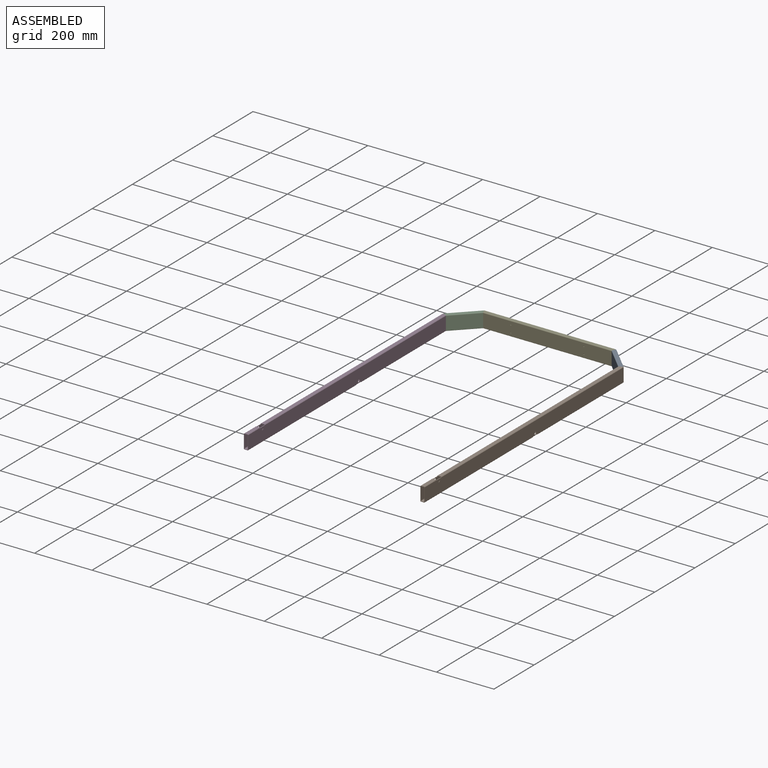
[diagram: assembled view]
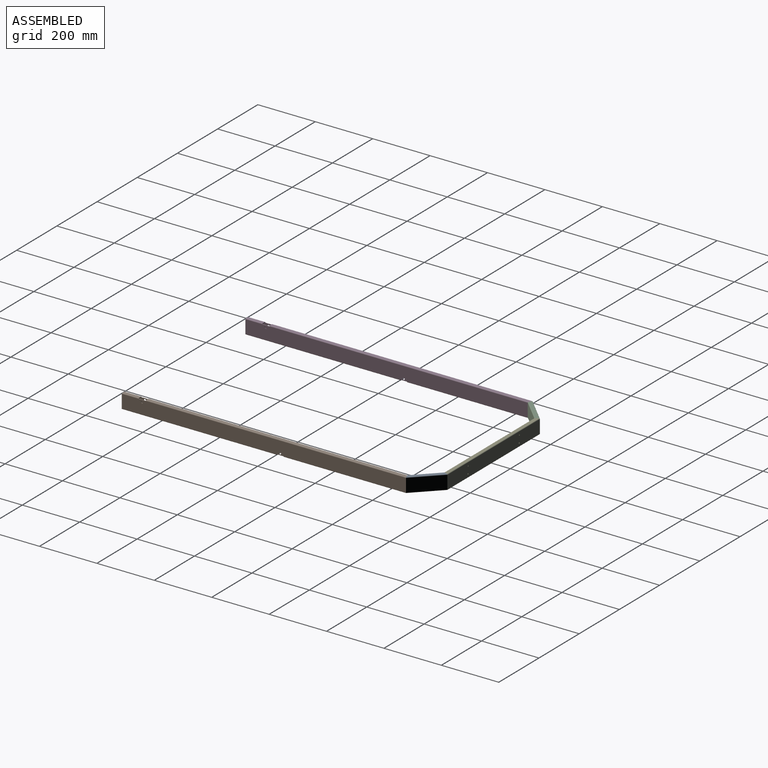
[diagram: assembled view, second angle]
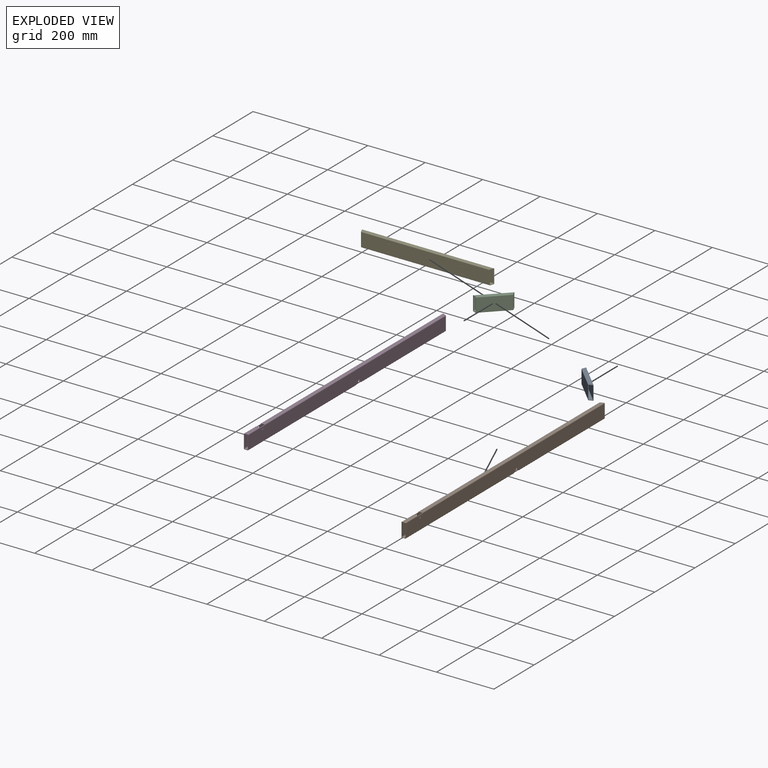
[diagram: exploded view]
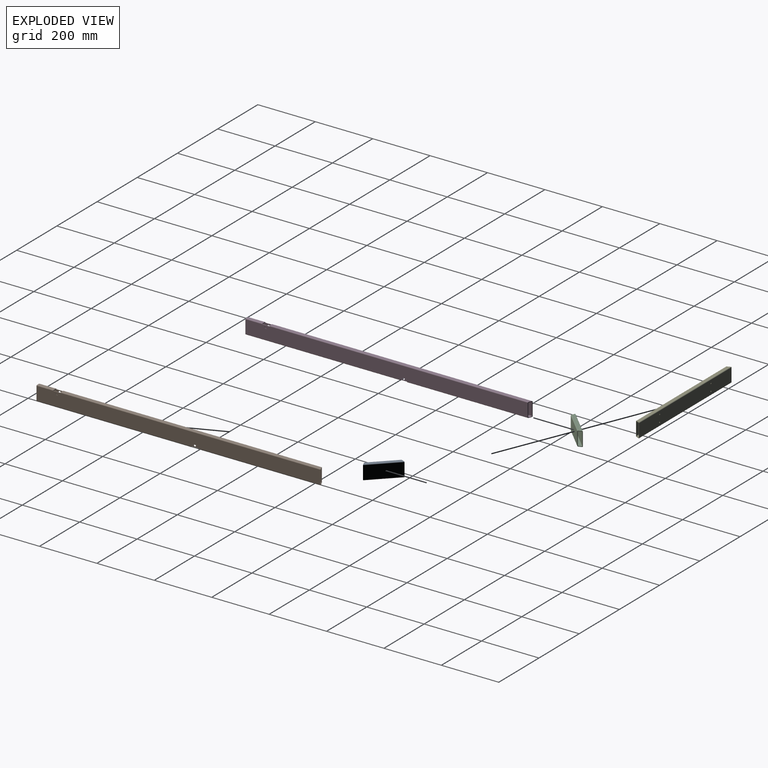
[diagram: exploded view, second angle]
ASSEMBLY  parts=5 mates=4
PART A: 18 faces, bbox 120.1x15x50 mm
  f0: cylinder r=2mm len=109.33mm, axis (1,0,0), area 340.2mm2, adj f2,f4,f8,f9
  f1: cylinder r=2mm len=109.33mm, axis (-1,0,0), area 340.2mm2, adj f2,f6,f8,f9
  f2: plane 107.67x46mm, normal (0,-1,0), area 4953mm2, adj f0,f1,f8,f9
  f3: cylinder r=2mm len=120.1mm, axis (-1,0,0), area 375.4mm2, adj f4,f7,f8,f9
  f4: plane 118.44x11mm, normal (0,0,1), area 1252.8mm2, adj f0,f3,f8,f9
  f5: cylinder r=2mm len=120.1mm, axis (1,0,0), area 375.4mm2, adj f6,f7,f8,f9
  f6: plane 118.44x11mm, normal (0,0,-1), area 1252.8mm2, adj f1,f5,f8,f9
  f7: plane 120.1x46mm, normal (0,1,0), area 5524.6mm2, adj f3,f5,f8,f9
  f8: plane 50x15mm, normal (0.92,-0.38,0), area 201.3mm2, adj f0,f1,f2,f3,f4,f5,f6,f7
  f9: plane 50x15mm, normal (-0.92,-0.38,0), area 201.3mm2, adj f0,f1,f2,f3,f4,f5,f6,f7
  f10: plane 118.86x43mm, normal (0,-1,0), area 5110.9mm2, adj f8,f9,f14,f17
  f11: plane 117.2x8mm, normal (0,0,1), area 911.1mm2, adj f8,f9,f14,f15
  f12: plane 108.92x43mm, normal (0,1,0), area 4683.4mm2, adj f8,f9,f15,f16
  f13: plane 117.2x8mm, normal (0,0,-1), area 911.1mm2, adj f8,f9,f16,f17
  f14: cylinder r=2mm len=118.86mm, axis (-1,0,0), area 371.5mm2, adj f8,f9,f10,f11
  f15: cylinder r=2mm len=110.57mm, axis (1,0,0), area 344.1mm2, adj f8,f9,f11,f12
  f16: cylinder r=2mm len=110.57mm, axis (-1,0,0), area 344.1mm2, adj f8,f9,f12,f13
  f17: cylinder r=2mm len=118.86mm, axis (1,0,0), area 371.5mm2, adj f8,f9,f10,f13
PART B: 38 faces, bbox 990x15x50 mm
  f0: plane 983.79x46mm, normal (0,1,0), area 45138.6mm2, adj f9,f10,f20,f23,f24,f25,f28,f29
  f1: plane 984.41x43mm, normal (0,-1,0), area 42223.9mm2, adj f6,f7,f20,f31,f32,f37
  f2: plane 989.38x43mm, normal (0,1,0), area 42437.7mm2, adj f5,f8,f20,f21,f26,f37
  f3: plane 904.97x8mm, normal (0,0,-1), area 7226.5mm2, adj f5,f6,f28,f37
  f4: plane 424.97x8mm, normal (0,0,1), area 3386.5mm2, adj f7,f8,f24,f37
  f5: cylinder r=2mm len=989.38mm, axis (-1,0,0), area 3064.1mm2, adj f2,f3,f19,f20,f27,f28,f29,f37
  f6: cylinder r=2mm len=985.24mm, axis (1,0,0), area 3050.4mm2, adj f1,f3,f19,f20,f28,f29,f30,f37
  f7: cylinder r=2mm len=985.24mm, axis (-1,0,0), area 3050.4mm2, adj f1,f4,f15,f20,f23,f24,f25,f37
  f8: cylinder r=2mm len=989.38mm, axis (1,0,0), area 3064.1mm2, adj f2,f4,f15,f20,f22,f23,f24,f37
  f9: cylinder r=2mm len=421.04mm, axis (1,0,0), area 1321.1mm2, adj f0,f17,f24,f37
  f10: cylinder r=2mm len=901.04mm, axis (-1,0,0), area 2829mm2, adj f0,f18,f28,f37
  f11: cylinder r=2mm len=906.42mm, axis (1,0,0), area 2846.7mm2, adj f16,f18,f28,f37
  f12: cylinder r=2mm len=426.42mm, axis (-1,0,0), area 1338.7mm2, adj f16,f17,f24,f37
  f13: plane 538.58x11mm, normal (0,0,-1), area 5924.4mm2, adj f20,f23,f33,f36
  f14: plane 58.58x11mm, normal (0,0,1), area 644.4mm2, adj f20,f29,f34,f35
  f15: plane 538.58x8mm, normal (0,0,1), area 4308.6mm2, adj f7,f8,f20,f23
  f16: plane 990x46mm, normal (0,-1,0), area 45424.4mm2, adj f11,f12,f20,f21,f22,f23,f24,f26
  f17: plane 425.59x11mm, normal (0,0,-1), area 4656.5mm2, adj f9,f12,f24,f37
  f18: plane 905.59x11mm, normal (0,0,1), area 9936.5mm2, adj f10,f11,f28,f37
  f19: plane 58.58x8mm, normal (0,0,-1), area 468.6mm2, adj f5,f6,f20,f29
  f20: plane 50x15mm, normal (-1,0,0), area 186mm2, adj f0,f1,f2,f5,f6,f7,f8,f13
  f21: cylinder r=4.1mm len=8.2mm, axis (0,-1,0), area 38.6mm2, adj f2,f16
  f22: plane 25x1.98mm, normal (0,0,-1), area 49.5mm2, adj f8,f16,f23,f24
  f23: plane 15x2.2mm, normal (1,0,0), area 24.2mm2, adj f0,f7,f8,f13,f15,f16,f22,f25
  f24: plane 15x2.2mm, normal (-1,0,0), area 24.2mm2, adj f0,f4,f7,f8,f9,f12,f16,f17
  f25: plane 25x1.98mm, normal (0,0,-1), area 49.5mm2, adj f0,f7,f23,f24
  f26: cylinder r=4.1mm len=8.2mm, axis (0,-1,0), area 38.6mm2, adj f2,f16
  f27: plane 25x1.98mm, normal (0,0,1), area 49.5mm2, adj f5,f16,f28,f29
  f28: plane 15x2.2mm, normal (-1,0,0), area 24.2mm2, adj f0,f3,f5,f6,f10,f11,f16,f18
  f29: plane 15x2.2mm, normal (1,0,0), area 24.2mm2, adj f0,f5,f6,f14,f16,f19,f27,f30
  f30: plane 25x1.98mm, normal (0,0,1), area 49.5mm2, adj f0,f6,f28,f29
  f31: cylinder r=4.1mm len=8.2mm, axis (0,-1,0), area 38.6mm2, adj f0,f1
  f32: cylinder r=4.1mm len=8.2mm, axis (0,-1,0), area 38.6mm2, adj f0,f1
  f33: cylinder r=2mm len=538.58mm, axis (1,0,0), area 1692mm2, adj f0,f13,f20,f23
  f34: cylinder r=2mm len=58.58mm, axis (-1,0,0), area 184mm2, adj f0,f14,f20,f29
  f35: cylinder r=2mm len=58.58mm, axis (1,0,0), area 184mm2, adj f14,f16,f20,f29
  f36: cylinder r=2mm len=538.58mm, axis (-1,0,0), area 1692mm2, adj f13,f16,f20,f23
  f37: plane 50x15mm, normal (0.92,0.38,0), area 201.3mm2, adj f0,f1,f2,f3,f4,f5,f6,f7
PART C: same geometry as A
PART D: 38 faces, bbox 990x15x50 mm
  f0: plane 983.79x46mm, normal (0,-1,0), area 45138.6mm2, adj f12,f13,f14,f15,f16,f18,f19,f20
  f1: plane 425.59x11mm, normal (0,0,-1), area 4656.5mm2, adj f16,f33,f36,f37
  f2: plane 905.59x11mm, normal (0,0,1), area 9936.5mm2, adj f20,f34,f35,f37
  f3: plane 538.58x11mm, normal (0,0,-1), area 5924.4mm2, adj f12,f15,f25,f30
  f4: plane 58.58x11mm, normal (0,0,1), area 644.4mm2, adj f12,f21,f26,f29
  f5: plane 990x46mm, normal (0,1,0), area 45424.4mm2, adj f12,f15,f16,f17,f20,f21,f22,f23
  f6: plane 989.38x43mm, normal (0,-1,0), area 42437.7mm2, adj f12,f23,f24,f28,f31,f37
  f7: plane 538.58x8mm, normal (0,0,1), area 4308.6mm2, adj f12,f15,f31,f32
  f8: plane 984.41x43mm, normal (0,1,0), area 42223.9mm2, adj f12,f13,f18,f27,f32,f37
  f9: plane 904.97x8mm, normal (0,0,-1), area 7226.5mm2, adj f20,f27,f28,f37
  f10: plane 424.97x8mm, normal (0,0,1), area 3386.5mm2, adj f16,f31,f32,f37
  f11: plane 58.58x8mm, normal (0,0,-1), area 468.6mm2, adj f12,f21,f27,f28
  f12: plane 50x15mm, normal (-1,0,0), area 186mm2, adj f0,f3,f4,f5,f6,f7,f8,f11
  f13: cylinder r=4.1mm len=8.2mm, axis (0,-1,0), area 38.6mm2, adj f0,f8
  f14: plane 25x1.98mm, normal (0,0,-1), area 49.5mm2, adj f0,f15,f16,f32
  f15: plane 15x2.2mm, normal (1,0,0), area 24.2mm2, adj f0,f3,f5,f7,f14,f17,f25,f30
  f16: plane 15x2.2mm, normal (-1,0,0), area 24.2mm2, adj f0,f1,f5,f10,f14,f17,f31,f32
  f17: plane 25x1.98mm, normal (0,0,-1), area 49.5mm2, adj f5,f15,f16,f31
  f18: cylinder r=4.1mm len=8.2mm, axis (0,-1,0), area 38.6mm2, adj f0,f8
  f19: plane 25x1.98mm, normal (0,0,1), area 49.5mm2, adj f0,f20,f21,f27
  f20: plane 15x2.2mm, normal (-1,0,0), area 24.2mm2, adj f0,f2,f5,f9,f19,f22,f27,f28
  f21: plane 15x2.2mm, normal (1,0,0), area 24.2mm2, adj f0,f4,f5,f11,f19,f22,f26,f27
  f22: plane 25x1.98mm, normal (0,0,1), area 49.5mm2, adj f5,f20,f21,f28
  f23: cylinder r=4.1mm len=8.2mm, axis (0,-1,0), area 38.6mm2, adj f5,f6
  f24: cylinder r=4.1mm len=8.2mm, axis (0,-1,0), area 38.6mm2, adj f5,f6
  f25: cylinder r=2mm len=538.58mm, axis (1,0,0), area 1692mm2, adj f3,f5,f12,f15
  f26: cylinder r=2mm len=58.58mm, axis (-1,0,0), area 184mm2, adj f4,f5,f12,f21
  f27: cylinder r=2mm len=985.24mm, axis (-1,0,0), area 3050.4mm2, adj f8,f9,f11,f12,f19,f20,f21,f37
  f28: cylinder r=2mm len=989.38mm, axis (1,0,0), area 3064.1mm2, adj f6,f9,f11,f12,f20,f21,f22,f37
  f29: cylinder r=2mm len=58.58mm, axis (1,0,0), area 184mm2, adj f0,f4,f12,f21
  f30: cylinder r=2mm len=538.58mm, axis (-1,0,0), area 1692mm2, adj f0,f3,f12,f15
  f31: cylinder r=2mm len=989.38mm, axis (-1,0,0), area 3064.1mm2, adj f6,f7,f10,f12,f15,f16,f17,f37
  f32: cylinder r=2mm len=985.24mm, axis (1,0,0), area 3050.4mm2, adj f7,f8,f10,f12,f14,f15,f16,f37
  f33: cylinder r=2mm len=426.42mm, axis (1,0,0), area 1338.7mm2, adj f1,f5,f16,f37
  f34: cylinder r=2mm len=906.42mm, axis (-1,0,0), area 2846.7mm2, adj f2,f5,f20,f37
  f35: cylinder r=2mm len=901.04mm, axis (1,0,0), area 2829mm2, adj f0,f2,f20,f37
  f36: cylinder r=2mm len=421.04mm, axis (-1,0,0), area 1321.1mm2, adj f0,f1,f16,f37
  f37: plane 50x15mm, normal (0.92,-0.38,0), area 201.3mm2, adj f0,f1,f2,f5,f6,f8,f9,f10
PART E: 26 faces, bbox 460x15x50 mm
  f0: plane 447.57x46mm, normal (0,-1,0), area 20533mm2, adj f13,f14,f16,f17,f18,f19,f24,f25
  f1: plane 458.34x11mm, normal (0,0,-1), area 4991.7mm2, adj f11,f14,f24,f25
  f2: plane 458.34x11mm, normal (0,0,1), area 4991.7mm2, adj f12,f13,f24,f25
  f3: plane 458.76x43mm, normal (0,-1,0), area 19671.1mm2, adj f7,f10,f20,f21,f22,f23,f24,f25
  f4: plane 448.82x43mm, normal (0,1,0), area 19243.7mm2, adj f8,f9,f16,f17,f18,f19,f24,f25
  f5: plane 457.1x8mm, normal (0,0,1), area 3630.3mm2, adj f7,f8,f24,f25
  f6: plane 457.1x8mm, normal (0,0,-1), area 3630.3mm2, adj f9,f10,f24,f25
  f7: cylinder r=2mm len=458.76mm, axis (-1,0,0), area 1439.3mm2, adj f3,f5,f24,f25
  f8: cylinder r=2mm len=450.47mm, axis (1,0,0), area 1411.9mm2, adj f4,f5,f24,f25
  f9: cylinder r=2mm len=450.47mm, axis (-1,0,0), area 1411.9mm2, adj f4,f6,f24,f25
  f10: cylinder r=2mm len=458.76mm, axis (1,0,0), area 1439.3mm2, adj f3,f6,f24,f25
  f11: cylinder r=2mm len=460mm, axis (1,0,0), area 1443.2mm2, adj f1,f15,f24,f25
  f12: cylinder r=2mm len=460mm, axis (-1,0,0), area 1443.2mm2, adj f2,f15,f24,f25
  f13: cylinder r=2mm len=449.23mm, axis (1,0,0), area 1408mm2, adj f0,f2,f24,f25
  f14: cylinder r=2mm len=449.23mm, axis (-1,0,0), area 1408mm2, adj f0,f1,f24,f25
  f15: plane 460x46mm, normal (0,1,0), area 21104.6mm2, adj f11,f12,f20,f21,f22,f23,f24,f25
  f16: cylinder r=2.1mm len=4.2mm, axis (0,-1,0), area 19.8mm2, adj f0,f4
  f17: cylinder r=2.1mm len=4.2mm, axis (0,-1,0), area 19.8mm2, adj f0,f4
  f18: cylinder r=2.1mm len=4.2mm, axis (0,-1,0), area 19.8mm2, adj f0,f4
  f19: cylinder r=2.1mm len=4.2mm, axis (0,-1,0), area 19.8mm2, adj f0,f4
  f20: cylinder r=2.1mm len=4.2mm, axis (0,-1,0), area 19.8mm2, adj f3,f15
  f21: cylinder r=2.1mm len=4.2mm, axis (0,-1,0), area 19.8mm2, adj f3,f15
  f22: cylinder r=2.1mm len=4.2mm, axis (0,-1,0), area 19.8mm2, adj f3,f15
  f23: cylinder r=2.1mm len=4.2mm, axis (0,-1,0), area 19.8mm2, adj f3,f15
  f24: plane 50x15mm, normal (0.92,-0.38,0), area 201.3mm2, adj f0,f1,f2,f3,f4,f5,f6,f7
  f25: plane 50x15mm, normal (-0.92,-0.38,0), area 201.3mm2, adj f0,f1,f2,f3,f4,f5,f6,f7
PLACE A rot(axis=(0,0,-1),45deg) t=(449.33,153.98,11.49)mm
PLACE B rot(axis=(0,0,1),90deg) t=(532.06,-915.64,11.49)mm
PLACE C rot(axis=(0,0,1),45deg) t=(-84.99,69.06,11.49)mm
PLACE D rot(axis=(0,0,1),90deg) t=(-82.79,-915.64,11.49)mm
PLACE E t=(-5.37,151.79,11.49)mm
MATE fastened A.f9 <-> E.f24  axis (-0.92,0.38,0) through (451.53,151.79,-13.51)mm
MATE fastened D.f37 <-> C.f9  axis (0.38,0.92,0) through (-82.79,71.26,-13.51)mm
MATE fastened B.f37 <-> A.f8  axis (-0.38,0.92,0) through (532.06,71.26,-13.51)mm
MATE fastened C.f8 <-> E.f25  axis (0.92,0.38,0) through (-2.26,151.79,-13.51)mm
